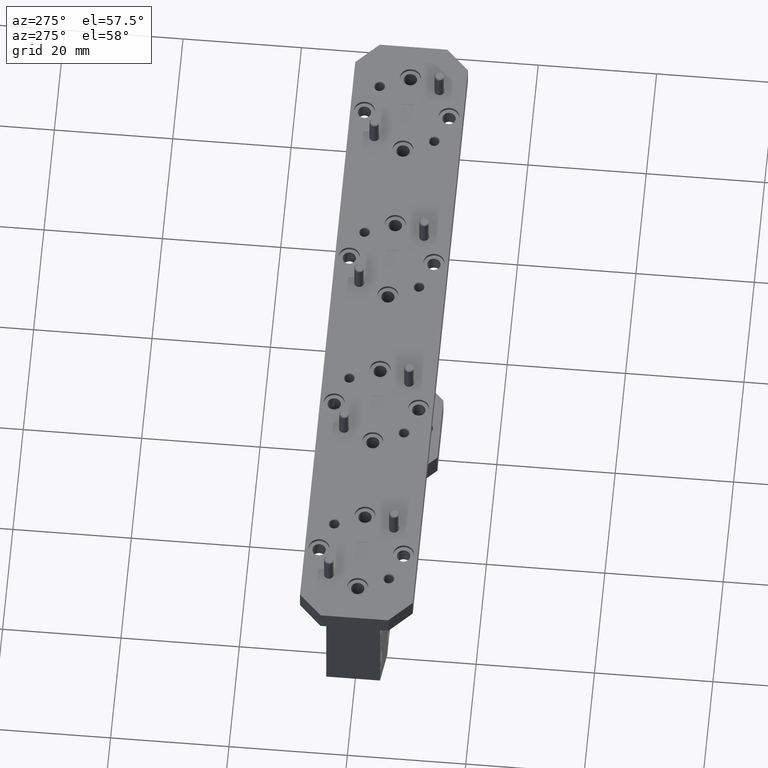
[diagram: clean part render]
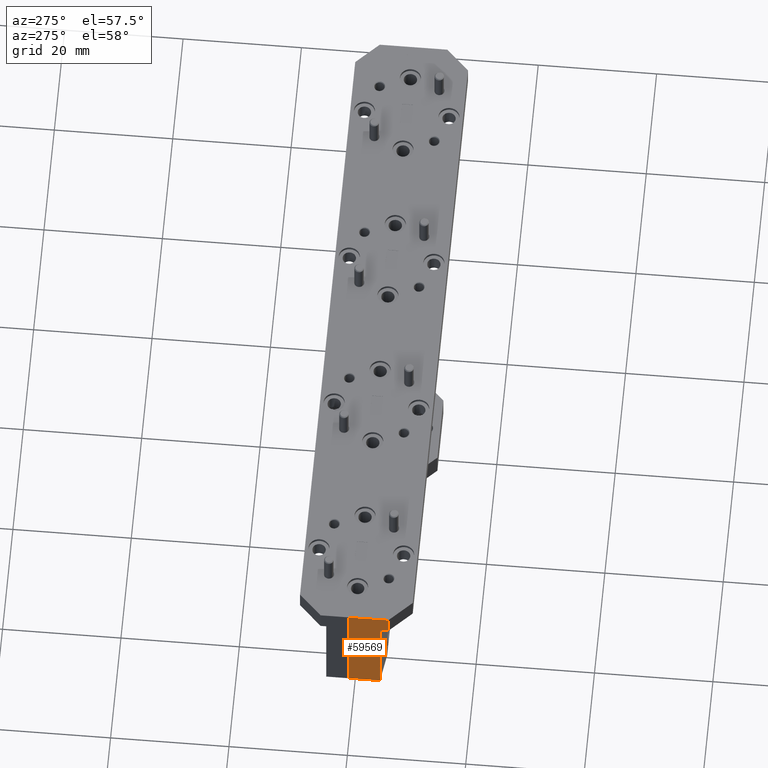
[diagram: same view with one face highlighted and labeled with its STEP entity id]
A machine part, auxiliary view. The second image highlights one B-rep face of the part: STEP entity #59569.
In plain terms, the highlighted planar face has unit normal (1, -0, 0).
Its self-contained STEP definition (entity closure, byte-faithful):
#1243 = DIRECTION ( 'NONE',  ( 1.387778780781436600E-017, 1.000000000000000000, 2.759659579148537200E-032 ) ) ;
#1676 = LINE ( 'NONE', #99072, #66070 ) ;
#2482 = LINE ( 'NONE', #51304, #44425 ) ;
#2948 = VECTOR ( 'NONE', #1243, 39.37007874015748100 ) ;
#6149 = EDGE_LOOP ( 'NONE', ( #17746, #30267, #82957, #79141, #27887, #77605 ) ) ;
#8368 = VECTOR ( 'NONE', #37086, 39.37007874015748100 ) ;
#14376 = CARTESIAN_POINT ( 'NONE',  ( -2.250000000000001300, 3.122502256758232400E-017, 0.3749999999999989500 ) ) ;
#16807 = VERTEX_POINT ( 'NONE', #14376 ) ;
#17746 = ORIENTED_EDGE ( 'NONE', *, *, #78415, .F. ) ;
#18694 = CARTESIAN_POINT ( 'NONE',  ( -2.250000000000000400, 3.122502256758234300E-017, -0.3750000000000011100 ) ) ;
#21064 = AXIS2_PLACEMENT_3D ( 'NONE', #36775, #95185, #45258 ) ;
#25844 = VERTEX_POINT ( 'NONE', #102576 ) ;
#27887 = ORIENTED_EDGE ( 'NONE', *, *, #43708, .F. ) ;
#30267 = ORIENTED_EDGE ( 'NONE', *, *, #69271, .T. ) ;
#32798 = DIRECTION ( 'NONE',  ( 1.387778780781436600E-017, 1.000000000000000000, 2.759659579148537200E-032 ) ) ;
#35476 = CARTESIAN_POINT ( 'NONE',  ( -2.250000000000001300, -0.2619999999999991200, 0.3749999999999989500 ) ) ;
#36775 = CARTESIAN_POINT ( 'NONE',  ( -2.250000000000001300, -0.2069999999999999600, 0.3749999999999989500 ) ) ;
#37086 = DIRECTION ( 'NONE',  ( 4.024558464266192500E-016, 1.961823310340160900E-032, -1.000000000000000000 ) ) ;
#37090 = VERTEX_POINT ( 'NONE', #35476 ) ;
#41093 = CARTESIAN_POINT ( 'NONE',  ( -2.250000000000000900, -0.2619999999999989600, 0.2449999999999989100 ) ) ;
#41217 = VERTEX_POINT ( 'NONE', #45509 ) ;
#43708 = EDGE_CURVE ( 'NONE', #41217, #53000, #47568, .T. ) ;
#44425 = VECTOR ( 'NONE', #59793, 39.37007874015748100 ) ;
#45258 = DIRECTION ( 'NONE',  ( -4.024558464266192500E-016, -1.961823310340138700E-032, 1.000000000000000000 ) ) ;
#45509 = CARTESIAN_POINT ( 'NONE',  ( -2.250000000000000400, -0.2069999999999999600, -0.3750000000000011100 ) ) ;
#46662 = LINE ( 'NONE', #49405, #66500 ) ;
#47568 = LINE ( 'NONE', #101245, #2948 ) ;
#49002 = DIRECTION ( 'NONE',  ( -4.024558464266192500E-016, -1.961823310340138700E-032, 1.000000000000000000 ) ) ;
#49405 = CARTESIAN_POINT ( 'NONE',  ( -2.250000000000001300, -0.2069999999999999600, 0.3749999999999989500 ) ) ;
#51304 = CARTESIAN_POINT ( 'NONE',  ( -2.250000000000000900, -4.913877386157913000, 0.2449999999999989100 ) ) ;
#53000 = VERTEX_POINT ( 'NONE', #18694 ) ;
#53362 = PLANE ( 'NONE',  #21064 ) ;
#57064 = CARTESIAN_POINT ( 'NONE',  ( -2.250000000000001300, -0.2619999999999991200, 0.3749999999999989500 ) ) ;
#59569 = ADVANCED_FACE ( 'NONE', ( #68648 ), #53362, .F. ) ;
#59793 = DIRECTION ( 'NONE',  ( 1.387778780781436600E-017, 1.000000000000000000, 2.759659579148537200E-032 ) ) ;
#63357 = EDGE_CURVE ( 'NONE', #37090, #16807, #46662, .T. ) ;
#66070 = VECTOR ( 'NONE', #107295, 39.37007874015748100 ) ;
#66500 = VECTOR ( 'NONE', #32798, 39.37007874015748100 ) ;
#68648 = FACE_OUTER_BOUND ( 'NONE', #6149, .T. ) ;
#69271 = EDGE_CURVE ( 'NONE', #95764, #37090, #92859, .T. ) ;
#75574 = EDGE_CURVE ( 'NONE', #16807, #53000, #94636, .T. ) ;
#77605 = ORIENTED_EDGE ( 'NONE', *, *, #94819, .F. ) ;
#78415 = EDGE_CURVE ( 'NONE', #95764, #25844, #2482, .T. ) ;
#78589 = CARTESIAN_POINT ( 'NONE',  ( -2.250000000000001300, 3.122502256758232400E-017, 0.3749999999999989500 ) ) ;
#79141 = ORIENTED_EDGE ( 'NONE', *, *, #75574, .T. ) ;
#82957 = ORIENTED_EDGE ( 'NONE', *, *, #63357, .T. ) ;
#90288 = VECTOR ( 'NONE', #49002, 39.37007874015748100 ) ;
#92859 = LINE ( 'NONE', #57064, #90288 ) ;
#94636 = LINE ( 'NONE', #78589, #8368 ) ;
#94819 = EDGE_CURVE ( 'NONE', #25844, #41217, #1676, .T. ) ;
#95185 = DIRECTION ( 'NONE',  ( 1.000000000000000000, -1.387778780781436600E-017, 4.024558464266192500E-016 ) ) ;
#95764 = VERTEX_POINT ( 'NONE', #41093 ) ;
#99072 = CARTESIAN_POINT ( 'NONE',  ( -2.250000000000001300, -0.2069999999999999600, 0.3749999999999989500 ) ) ;
#101245 = CARTESIAN_POINT ( 'NONE',  ( -2.250000000000000400, -0.2069999999999999600, -0.3750000000000011100 ) ) ;
#102576 = CARTESIAN_POINT ( 'NONE',  ( -2.250000000000000900, -0.2069999999999999600, 0.2449999999999986900 ) ) ;
#107295 = DIRECTION ( 'NONE',  ( 4.024558464266192500E-016, 1.961823310340160900E-032, -1.000000000000000000 ) ) ;